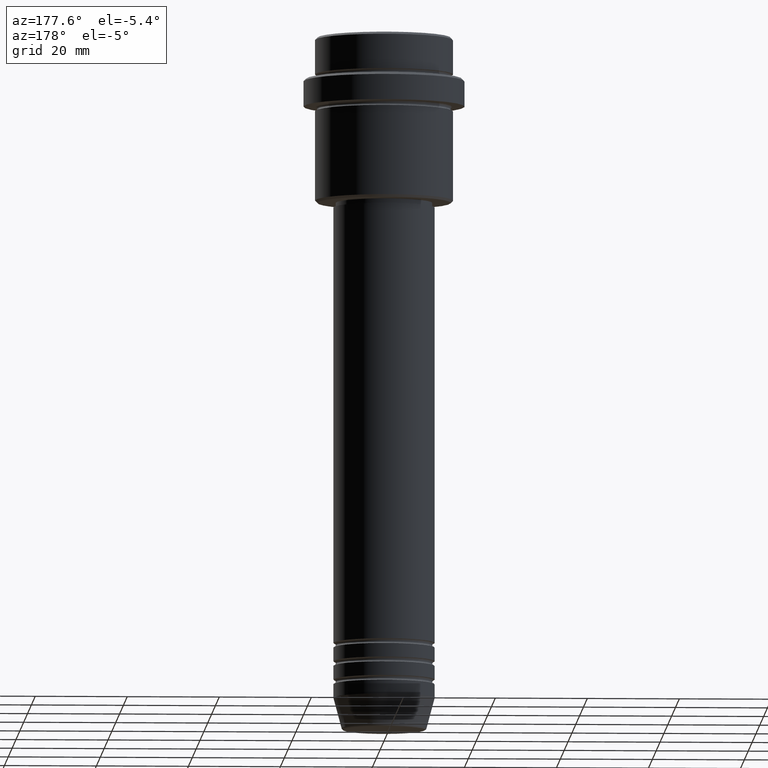
[diagram: clean part render]
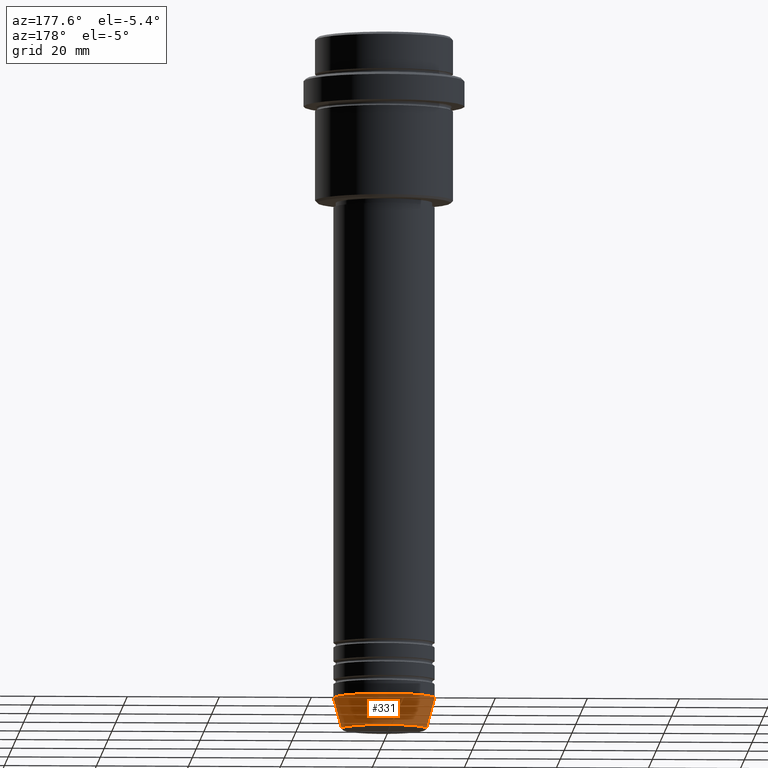
[diagram: same view with one face highlighted and labeled with its STEP entity id]
A machine part, auxiliary view. The second image highlights one B-rep face of the part: STEP entity #331.
In plain terms, the highlighted conical surface has half-angle 15 deg.
Its self-contained STEP definition (entity closure, byte-faithful):
#23 = FACE_OUTER_BOUND ( 'NONE', #503, .T. ) ;
#53 = CARTESIAN_POINT ( 'NONE',  ( 11.00000000000000000, 0.000000000000000000, -144.0000000000000000 ) ) ;
#120 = CONICAL_SURFACE ( 'NONE', #210, 11.00000000000000000, 0.2617993877991510177 ) ;
#122 = AXIS2_PLACEMENT_3D ( 'NONE', #1346, #890, #358 ) ;
#128 = CARTESIAN_POINT ( 'NONE',  ( 9.223655072137191269, 0.000000000000000000, -150.6294095225512422 ) ) ;
#129 = EDGE_CURVE ( 'NONE', #496, #1280, #159, .T. ) ;
#159 = CIRCLE ( 'NONE', #994, 11.00000000000000000 ) ;
#162 = ORIENTED_EDGE ( 'NONE', *, *, #928, .F. ) ;
#210 = AXIS2_PLACEMENT_3D ( 'NONE', #580, #784, #811 ) ;
#328 = LINE ( 'NONE', #874, #448 ) ;
#331 = ADVANCED_FACE ( 'NONE', ( #23 ), #120, .T. ) ;
#358 = DIRECTION ( 'NONE',  ( 1.000000000000000000, 0.000000000000000000, 0.000000000000000000 ) ) ;
#366 = CARTESIAN_POINT ( 'NONE',  ( -11.00000000000000000, 1.347111479062088405E-15, -144.0000000000000000 ) ) ;
#435 = DIRECTION ( 'NONE',  ( -0.000000000000000000, -0.000000000000000000, 1.000000000000000000 ) ) ;
#448 = VECTOR ( 'NONE', #1415, 1000.000000000000000 ) ;
#496 = VERTEX_POINT ( 'NONE', #53 ) ;
#502 = CARTESIAN_POINT ( 'NONE',  ( 11.00000000000000000, 0.000000000000000000, -144.0000000000000000 ) ) ;
#503 = EDGE_LOOP ( 'NONE', ( #1375, #1409, #1032, #162 ) ) ;
#512 = VECTOR ( 'NONE', #594, 1000.000000000000000 ) ;
#544 = DIRECTION ( 'NONE',  ( 1.000000000000000000, 0.000000000000000000, 0.000000000000000000 ) ) ;
#580 = CARTESIAN_POINT ( 'NONE',  ( 0.000000000000000000, 0.000000000000000000, -144.0000000000000000 ) ) ;
#594 = DIRECTION ( 'NONE',  ( 0.2588190451025222938, 0.000000000000000000, 0.9659258262890678681 ) ) ;
#648 = CARTESIAN_POINT ( 'NONE',  ( 0.000000000000000000, 0.000000000000000000, -144.0000000000000000 ) ) ;
#655 = CIRCLE ( 'NONE', #122, 9.223655072137191269 ) ;
#691 = EDGE_CURVE ( 'NONE', #1013, #1191, #655, .T. ) ;
#784 = DIRECTION ( 'NONE',  ( -0.000000000000000000, -0.000000000000000000, 1.000000000000000000 ) ) ;
#811 = DIRECTION ( 'NONE',  ( 1.000000000000000000, 0.000000000000000000, 0.000000000000000000 ) ) ;
#874 = CARTESIAN_POINT ( 'NONE',  ( -11.00000000000000000, 1.347111479062088405E-15, -144.0000000000000000 ) ) ;
#890 = DIRECTION ( 'NONE',  ( -0.000000000000000000, -0.000000000000000000, 1.000000000000000000 ) ) ;
#928 = EDGE_CURVE ( 'NONE', #1013, #496, #1272, .T. ) ;
#994 = AXIS2_PLACEMENT_3D ( 'NONE', #648, #435, #544 ) ;
#1011 = CARTESIAN_POINT ( 'NONE',  ( -9.223655072137191269, 1.238341722557647202E-15, -150.6294095225512422 ) ) ;
#1013 = VERTEX_POINT ( 'NONE', #128 ) ;
#1030 = EDGE_CURVE ( 'NONE', #1191, #1280, #328, .T. ) ;
#1032 = ORIENTED_EDGE ( 'NONE', *, *, #129, .F. ) ;
#1191 = VERTEX_POINT ( 'NONE', #1011 ) ;
#1272 = LINE ( 'NONE', #502, #512 ) ;
#1280 = VERTEX_POINT ( 'NONE', #366 ) ;
#1346 = CARTESIAN_POINT ( 'NONE',  ( 0.000000000000000000, 0.000000000000000000, -150.6294095225512422 ) ) ;
#1375 = ORIENTED_EDGE ( 'NONE', *, *, #691, .T. ) ;
#1409 = ORIENTED_EDGE ( 'NONE', *, *, #1030, .T. ) ;
#1415 = DIRECTION ( 'NONE',  ( -0.2588190451025222938, 3.169619151431783430E-17, 0.9659258262890678681 ) ) ;